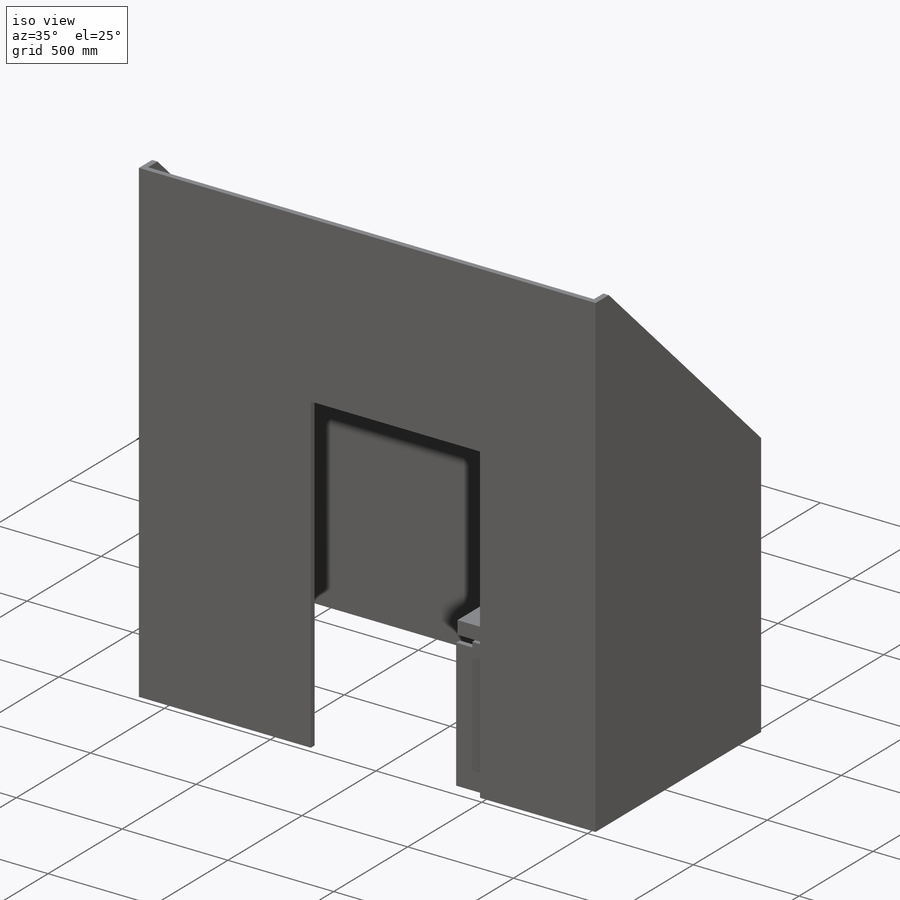
[diagram: iso view]
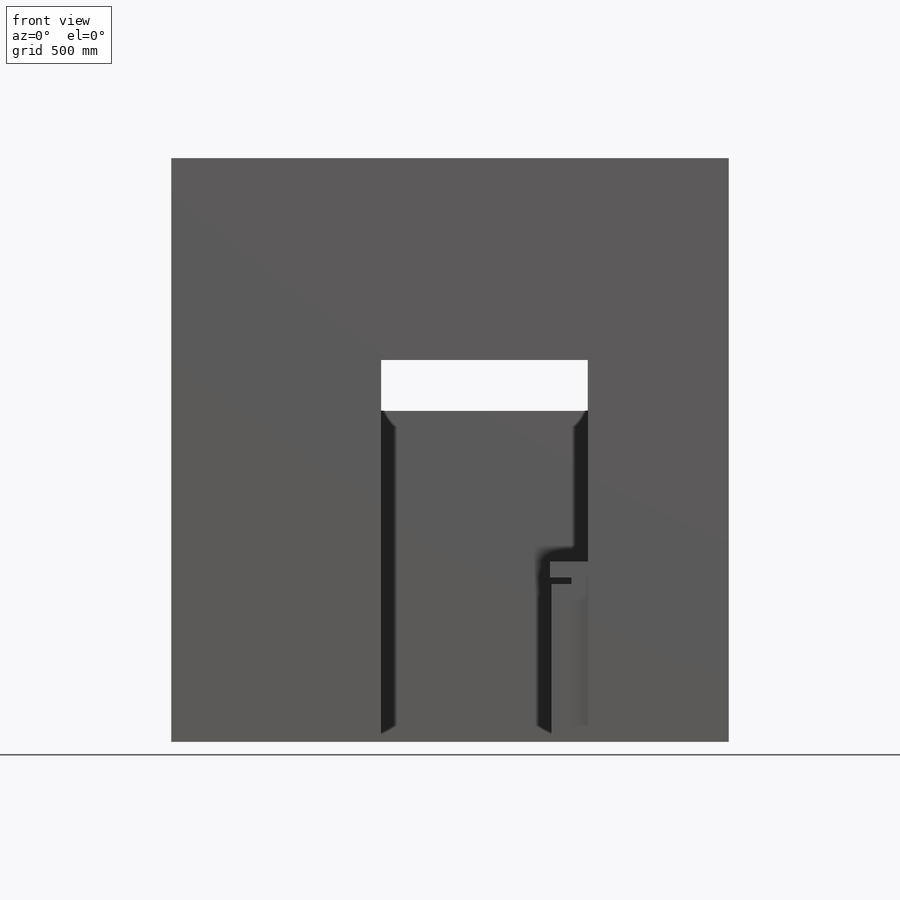
[diagram: front view]
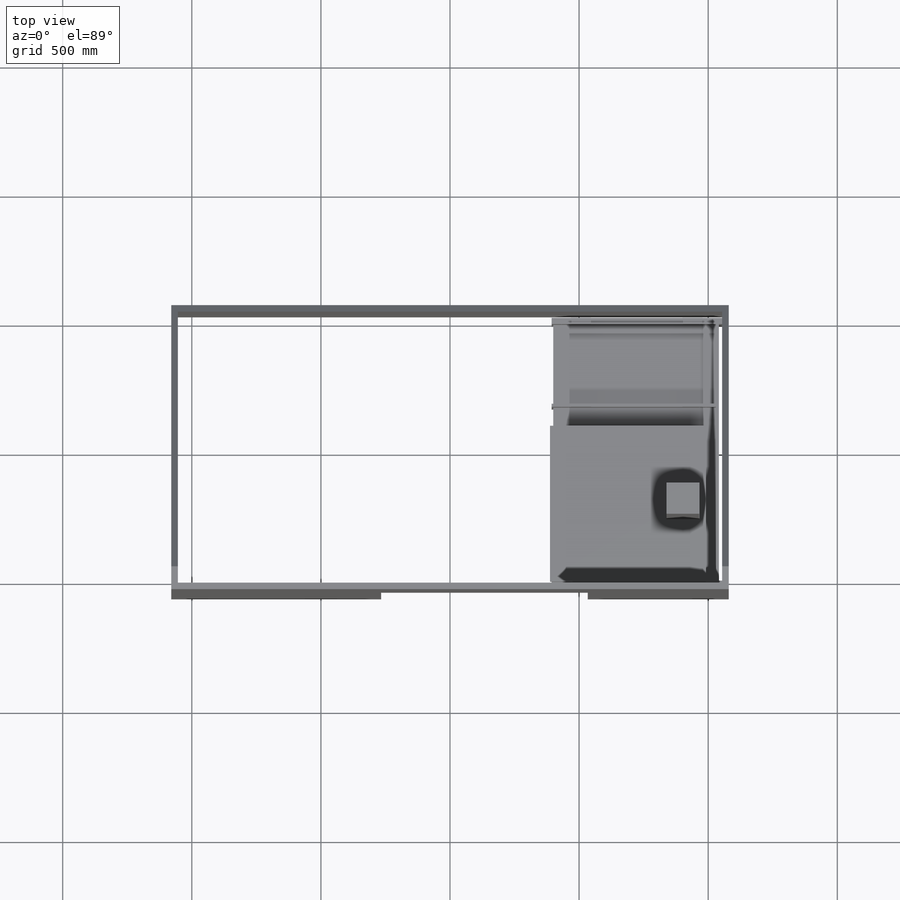
[diagram: top view]
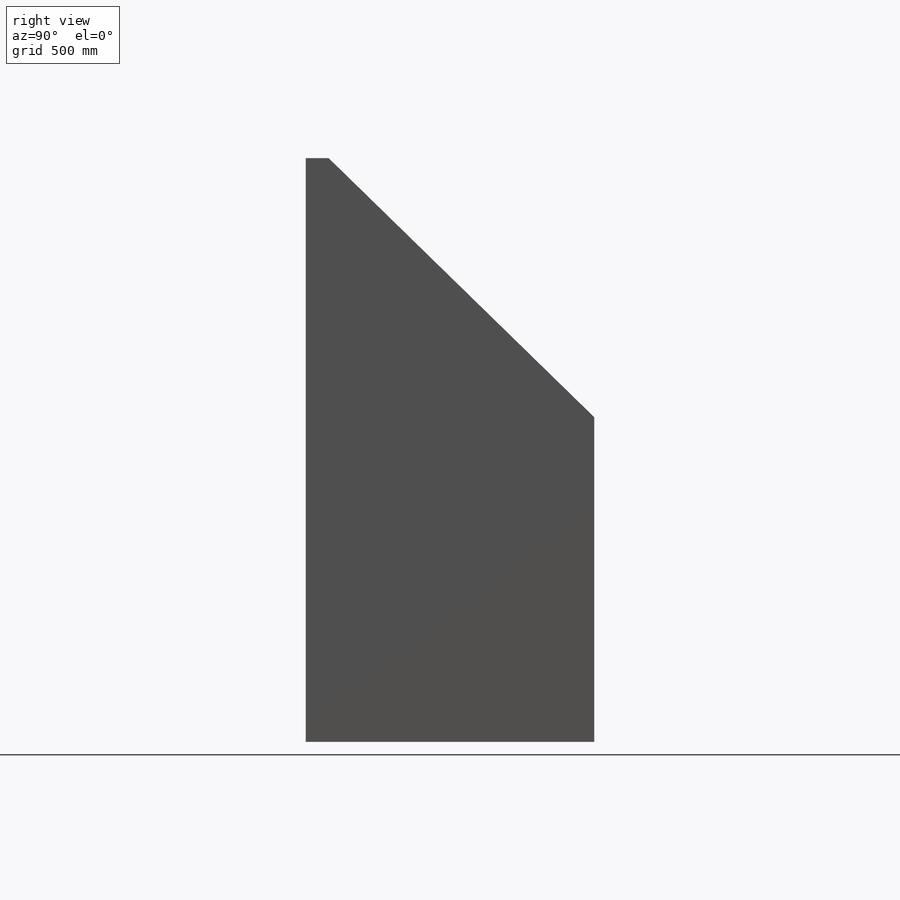
[diagram: right view]
SOLIDWORKS PART (.sldprt)
format: sldprt  version: not decoded by parser v0  size: 3,528,192 bytes
history: native  units: mm
features: sketch x81, cut_extrude x42, extrude x39, chamfer x9, plane x3, pattern_linear x2, material x1, fillet x1 + 5 further entries (+12 scaffold rows collapsed)
feature tree (195):
  scaffold x12  (default folders/planes/origin — collapsed)
  material  "Material <not specified>"
  "enlarger"
  "shelves"
  "wet side"
  "drawers"
  "whiteboardmaterial"
  sketch  "Sketch1"  dims[D1=2108.2mm D2=1066.8mm D3=25.4mm]
  extrude  "Boss-Extrude1"  Depth=2260.6mm
  sketch  "Sketch2"  dims[D1=1257.3mm D2=88.9mm D3=~1436.953228mm]
  cut_extrude  "Cut-Extrude1"  [1 undecoded]
  sketch  "Sketch3"  dims[c1.D1=812.8mm c1.D2=762.0mm c1.D3=~1478.986278mm c2.D2=546.1mm]
  cut_extrude  "Cut-Extrude2"  [1 undecoded]
  sketch  "Sketch4"  dims[D1=23.876mm D2=1041.4mm D3=12.7mm D4=635.0mm]
  extrude  "Boss-Extrude2"  Depth=685.8mm
  sketch  "Sketch5"  dims[c1.D1=23.876mm c1.D2=25.4mm c1.D3=23.876mm c1.D4=482.6mm c1.D5=647.7mm c2.D2=25.4mm c2.D4=25.4mm c2.D5=101.6mm c2.D6=482.6mm c3.D2=0.0mm c3.D4=0.0mm]
  extrude  "Boss-Extrude5"  Depth=25.4mm
  sketch  "Sketch14"  dims[D1=603.25mm D2=603.25mm D3=19.05mm D4=19.05mm]
  extrude  "Boss-Extrude10"  Depth=63.5mm
  sketch  "Sketch15"  dims[D1=241.3mm D2=241.3mm D3=127.0mm D4=25.4mm]
  extrude  "Boss-Extrude11"  Depth=1193.8mm
  sketch  "Sketch20"  dims[D1=11.938mm D2=12.7mm]
  extrude  "Boss-Extrude15"  Depth=76.2mm
  sketch  "Sketch21"  dims[D1=11.938mm D2=673.1mm D3=533.4mm]
  extrude  "Boss-Extrude16"  [1 undecoded]
  sketch  "Sketch22"  dims[D1=11.938mm D2=25.4mm]
  extrude  "Boss-Extrude17"  Depth=6.35mm
  sketch  "Sketch23"  dims[c1.D1=6.35mm c1.D2=6.35mm c1.D3=6.35mm c1.D4=6.35mm c2.D2=76.2mm c2.D3=38.1mm c2.D5=63.5mm]
  cut_extrude  "Cut-Extrude3"  Depth=12.7mm
  sketch  "Sketch24"
  cut_extrude  "Cut-Extrude4"  Depth=12.7mm
  sketch  "Sketch25"  dims[c1.D1=6.35mm c1.D2=6.35mm c1.D4=6.35mm c2.D2=63.5mm c2.D3=76.2mm c2.D5=38.1mm]
  cut_extrude  "Cut-Extrude5"  Depth=12.7mm
  sketch  "Sketch26"
  cut_extrude  "Cut-Extrude7"  Depth=12.7mm
  pattern_linear  "LPattern1"  Count1=15 Count2=1 Spacing1=25.4mm Spacing2=2.54mm
  sketch  "Sketch28"  dims[D1=11.938mm D2=11.938mm D3=11.938mm D4=11.938mm D5=0.508mm D6=0.508mm D7=0.508mm D8=0.508mm D9=127.0mm D10=127.0mm D11=203.2mm D12=203.2mm]
  extrude  "Boss-Extrude18"  Depth=6.35mm
  sketch  "Sketch33"  dims[c1.D1=76.2mm c1.D2=76.2mm c1.D3=76.2mm c1.D4=76.2mm c2.D1=76.2mm c2.D3=76.2mm]
  extrude  "Boss-Extrude22"  [1 undecoded]
  sketch  "Sketch34"  dims[c1.D1=76.2mm c1.D2=76.2mm c1.D3=76.2mm c1.D4=76.2mm c2.D3=76.2mm c2.D4=76.2mm]
  extrude  "Boss-Extrude23"  [1 undecoded]
  sketch  "Sketch35"
  extrude  "Boss-Extrude24"  [1 undecoded]
  sketch  "Sketch36"  dims[D1=76.2mm D2=76.2mm D3=76.2mm D4=76.2mm D5=76.2mm D6=76.2mm D7=76.2mm D8=76.2mm D9=76.2mm]
  extrude  "Boss-Extrude25"  [1 undecoded]
  sketch  "Sketch37"  dims[D1=76.2mm D2=25.4mm]
  extrude  "Boss-Extrude26"  [1 undecoded]
  sketch  "Sketch38"  dims[D1=76.2mm D2=25.4mm D3=76.2mm]
  extrude  "Boss-Extrude27"  [1 undecoded]
  sketch  "Sketch39"  dims[D2=673.1mm D4=76.2mm D1=0.1905mm D3=0.1905mm]
  cut_extrude  "Cut-Extrude8"  [1 undecoded]
  sketch  "Sketch40"  dims[D1=0.1905mm]
  cut_extrude  "Cut-Extrude9"  [1 undecoded]
  sketch  "Sketch41"  dims[D1=0.1905mm]
  cut_extrude  "Cut-Extrude10"  [1 undecoded]
  sketch  "Sketch42"
  cut_extrude  "Cut-Extrude11"  [1 undecoded]
  sketch  "Sketch43"
  cut_extrude  "Cut-Extrude12"  [1 undecoded]
  sketch  "Sketch44"
  cut_extrude  "Cut-Extrude13"  [1 undecoded]
  sketch  "Sketch48"  dims[c1.D1=8.89mm c1.D2=12.7mm c1.D3=63.5mm c1.D4=8.89mm c1.D5=38.1mm c2.D3=63.5mm c2.D6=12.7mm c2.D7=12.7mm c2.D8=12.7mm c2.D9=63.5mm c3.D6=38.1mm c3.D7=12.7mm c3.D8=6.2103mm c4.D6=38.1mm c4.D7=8.89mm c4.D8=12.7mm c4.D9=8.89mm c4.D10=63.5mm c4.D11=12.7mm c4.D12=12.7mm c4.D2=12.7mm c4.D3=63.5mm c5.D6=38.1mm]
  cut_extrude  "Cut-Extrude14"  Depth=3.683mm
  sketch  "Sketch49"
  cut_extrude  "Cut-Extrude15"  Depth=3.683mm
  sketch  "Sketch52"  dims[D1=12.7mm D2=12.7mm]
  cut_extrude  "Cut-Extrude18"  Depth=3.683mm
  sketch  "Sketch53"
  cut_extrude  "Cut-Extrude19"  Depth=3.683mm
  sketch  "Sketch69"  dims[D1=3.175mm D2=25.4mm D3=76.2mm D4=38.1mm D5=76.2mm D6=38.1mm D7=152.4mm D8=38.1mm D9=114.3mm D10=101.6mm]
  cut_extrude  "Cut-Extrude21"  [1 undecoded]
  sketch  "Sketch70"  dims[c1.D1=3.175mm c1.D2=38.1mm c1.D3=25.4mm c1.D4=177.8mm c1.D5=38.1mm c1.D6=38.1mm c1.D7=114.3mm c1.D8=127.0mm c2.D6=38.1mm c2.D7=114.3mm c2.D5=38.1mm]
  cut_extrude  "Cut-Extrude22"  [1 undecoded]
  sketch  "Sketch72"  dims[D1=3.175mm]
  cut_extrude  "Cut-Extrude23"  [1 undecoded]
  sketch  "Sketch73"
  cut_extrude  "Cut-Extrude24"  [1 undecoded]
  sketch  "Sketch74"  dims[c1.D1=3.175mm c1.D2=38.1mm c1.D3=177.8mm c1.D4=38.1mm c1.D5=25.4mm c1.D6=38.1mm c1.D7=38.1mm c1.D8=152.4mm c1.D9=127.0mm c1.D10=12.7mm c2.D9=127.0mm c2.D5=25.4mm c2.D3=177.8mm c2.D8=152.4mm c2.D7=38.1mm c2.D2=38.1mm]
  cut_extrude  "Cut-Extrude25"  [1 undecoded]
  fillet  "Fillet1"  Radius=6.35mm
  chamfer  "Chamfer1"  Distance=3.175mm Angle=45deg
  chamfer  "Chamfer2"  Distance=3.175mm Angle=45deg
  chamfer  "Chamfer3"  Distance=3.175mm Angle=45deg
  chamfer  "Chamfer4"  Distance=3.175mm Angle=45deg
  chamfer  "Chamfer5"  Distance=3.175mm Angle=45deg
  chamfer  "Chamfer6"  Distance=3.175mm Angle=45deg
  chamfer  "Chamfer7"  Distance=3.175mm Angle=45deg
  chamfer  "Chamfer8"  Distance=3.175mm Angle=45deg
  chamfer  "Chamfer9"  Distance=3.175mm Angle=45deg
  sketch  "Sketch76"  dims[D1=11.938mm D2=520.7mm D3=673.1mm D4=12.7mm D5=11.938mm]
  extrude  "Boss-Extrude28"  Depth=660.4mm
  sketch  "Sketch77"  dims[D1=1041.4mm D2=660.4mm]
  extrude  "Boss-Extrude29"  Depth=26.162mm
  sketch  "Sketch78"  dims[D1=11.938mm D2=127.0mm D3=12.7mm D4=38.1mm D5=127.0mm]
  extrude  "Boss-Extrude30"  [1 undecoded]
  sketch  "Sketch79"  dims[D1=11.938mm D2=660.4mm D3=660.4mm]
  extrude  "Boss-Extrude31"  Depth=673.1mm
  sketch  "Sketch80"  dims[D1=12.7mm D2=11.938mm D3=635.0mm D4=11.938mm]
  extrude  "Boss-Extrude32"  [1 undecoded]
  sketch  "Sketch81"  dims[D1=50.8mm D2=6.35mm D3=11.938mm]
  extrude  "Boss-Extrude33"  [1 undecoded]
  sketch  "Sketch83"  dims[D1=26.162mm]
  extrude  "Boss-Extrude34"  Depth=50.8mm
  sketch  "Sketch84"  dims[D1=26.162mm]
  extrude  "Boss-Extrude35"  Depth=50.8mm
  plane  "wet shelves"  Offset=12.7mm
  sketch  "Sketch87"  dims[D1=12.7mm D2=11.938mm D3=114.3mm D4=596.9mm]
  extrude  "Boss-Extrude36"  Depth=495.3mm
  sketch  "Sketch88"  dims[D1=2.54mm D2=2.54mm D3=38.1mm]
  extrude  "Boss-Extrude37"  Depth=11.938mm
  sketch  "Sketch91"
  extrude  "Boss-Extrude38"  Depth=11.938mm
  sketch  "Sketch92"  dims[D1=7.62mm D2=76.2mm D3=76.2mm D4=76.2mm D5=~73.900341mm]
  extrude  "Boss-Extrude39"  [1 undecoded]
  sketch  "Sketch93"  dims[D1=0.1905mm]
  cut_extrude  "Cut-Extrude26"  [1 undecoded]
  sketch  "Sketch94"  dims[D1=0.1905mm]
  cut_extrude  "Cut-Extrude27"  [1 undecoded]
  sketch  "Sketch97"  dims[D1=76.2mm D2=76.2mm D3=76.2mm D4=76.2mm D5=76.2mm D6=76.2mm D7=76.2mm D8=76.2mm D9=76.2mm]
  extrude  "Boss-Extrude40"  [1 undecoded]
  sketch  "Sketch98"  dims[c1.D1=76.2mm c1.D2=76.2mm c1.D3=76.2mm c1.D4=76.2mm c1.D5=76.2mm c1.D6=76.2mm c1.D7=76.2mm c2.D3=25.4mm c2.D2=25.4mm c2.D8=6.35mm c2.D9=76.2mm c2.D10=76.2mm c2.D11=76.2mm]
  extrude  "Boss-Extrude41"  [1 undecoded]
  sketch  "Sketch100"  dims[D1=50.8mm D2=6.35mm D3=76.2mm D4=76.2mm D5=76.2mm]
  extrude  "Boss-Extrude42"  [1 undecoded]
  sketch  "Sketch101"  dims[D1=50.8mm]
  extrude  "Boss-Extrude43"  [1 undecoded]
  sketch  "Sketch102"  dims[D1=6.35mm D2=76.2mm D3=76.2mm D4=76.2mm D5=76.2mm]
  extrude  "Boss-Extrude44"  [1 undecoded]
  sketch  "Sketch103"
  extrude  "Boss-Extrude45"  [1 undecoded]
  sketch  "Sketch104"
  extrude  "Boss-Extrude46"  [1 undecoded]
  sketch  "Sketch105"  dims[c1.D1=25.4mm c1.D2=8.89mm c1.D3=0.0mm c2.D2=0.0mm c2.D4=76.2mm]
  extrude  "Boss-Extrude47"  [1 undecoded]
  sketch  "Sketch106"
  extrude  "Boss-Extrude48"  [1 undecoded]
  sketch  "Sketch107"  dims[D1=76.2mm D2=0.0mm D3=50.8mm]
  extrude  "Boss-Extrude49"  [1 undecoded]
  sketch  "Sketch108"
  extrude  "Boss-Extrude50"  [1 undecoded]
  sketch  "Sketch109"  dims[D1=0.1905mm]
  cut_extrude  "Cut-Extrude28"  [1 undecoded]
  sketch  "Sketch112"  dims[c1.D1=0.0mm c1.D2=0.0mm c2.D1=0.0mm c2.D3=0.1905mm]
  cut_extrude  "Cut-Extrude29"  [1 undecoded]
  sketch  "Sketch113"  dims[D1=0.1905mm]
  cut_extrude  "Cut-Extrude30"  [1 undecoded]
  sketch  "Sketch114"  dims[D1=0.1905mm]
  cut_extrude  "Cut-Extrude31"  [1 undecoded]
  sketch  "Sketch115"  dims[D1=0.1905mm]
  cut_extrude  "Cut-Extrude32"  [1 undecoded]
  sketch  "Sketch116"  dims[D1=0.1905mm]
  cut_extrude  "Cut-Extrude33"  [1 undecoded]
  sketch  "Sketch117"  dims[D1=0.1905mm]
  cut_extrude  "Cut-Extrude34"  [1 undecoded]
  sketch  "Sketch118"  dims[D1=0.1905mm]
  cut_extrude  "Cut-Extrude35"  [1 undecoded]
  plane  "enlarger head"  Offset=762mm
  sketch  "Sketch119"  dims[D1=25.4mm D2=25.4mm D3=482.6mm D4=304.8mm D5=25.4mm D6=241.3mm]
  extrude  "enlarger head extrude"  Depth=203.2mm
  sketch  "Sketch120"
  cut_extrude  "cut shape enlarger head"  Depth=203.2mm
  sketch  "Sketch122"  dims[c1.D1=3.175mm c1.D2=25.4mm c1.D3=25.5905mm c2.D2=25.4mm c2.D3=19.05mm c2.D4=38.1mm c2.D5=25.4mm c2.D6=19.05mm]
  cut_extrude  "Cut-Extrude38"  [1 undecoded]
  sketch  "Sketch123"
  cut_extrude  "Cut-Extrude39"  [1 undecoded]
  sketch  "Sketch124"  dims[D1=3.175mm]
  cut_extrude  "Cut-Extrude40"  [1 undecoded]
  sketch  "Sketch125"
  cut_extrude  "Cut-Extrude41"  [1 undecoded]
  sketch  "Sketch126"  dims[D1=3.175mm D10=3.175mm D2=38.1mm D3=38.1mm D4=38.1mm D5=165.1mm D6=38.1mm D7=38.1mm D8=165.1mm D9=38.1mm]
  cut_extrude  "Cut-Extrude42"  [1 undecoded]
  sketch  "Sketch127"  dims[D1=19.05mm D2=19.05mm D3=19.05mm D4=19.05mm]
  cut_extrude  "Cut-Extrude43"  [1 undecoded]
  sketch  "Sketch128"  dims[D1=3.175mm D2=19.05mm D3=19.05mm D4=19.05mm D5=19.05mm D6=6.35mm D7=6.35mm D8=6.35mm D9=6.35mm D10=38.1mm D11=38.1mm D12=38.1mm]
  cut_extrude  "Cut-Extrude44"  [1 undecoded]
  sketch  "Sketch129"  dims[D1=3.175mm D2=38.1mm D3=38.1mm]
  cut_extrude  "Cut-Extrude45"  [1 undecoded]
  sketch  "Sketch130"  dims[D1=3.175mm D2=114.3mm D3=114.3mm]
  cut_extrude  "Cut-Extrude46"  [1 undecoded]
  sketch  "Sketch131"
  cut_extrude  "Cut-Extrude47"  [1 undecoded]
  pattern_linear  "LPattern3"  Count1=5 Count2=1 Spacing1=127mm Spacing2=50mm
  plane  "Plane1"  Offset=222.25mm
decode coverage: 101 of 174 modeling features carry decoded parameters; 5 rows unclassified (native names shown)
note: ~ marks probable driven/reference dimensions
note: 55 parameter values undecoded
summary: no parameter record found for 55 features
note: suppression state not decoded; provenance and decode notes live in map.json
